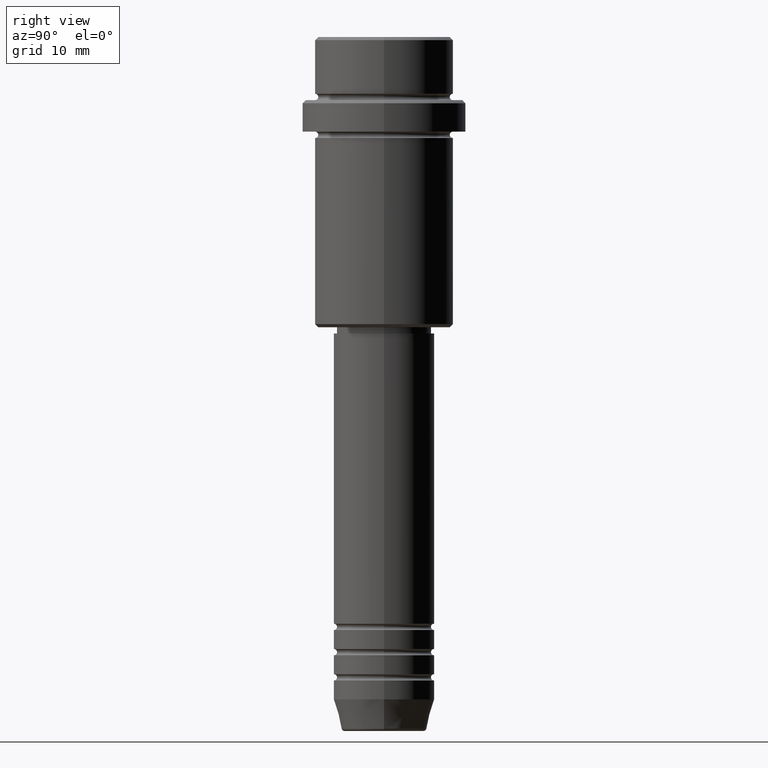
[diagram: clean part render]
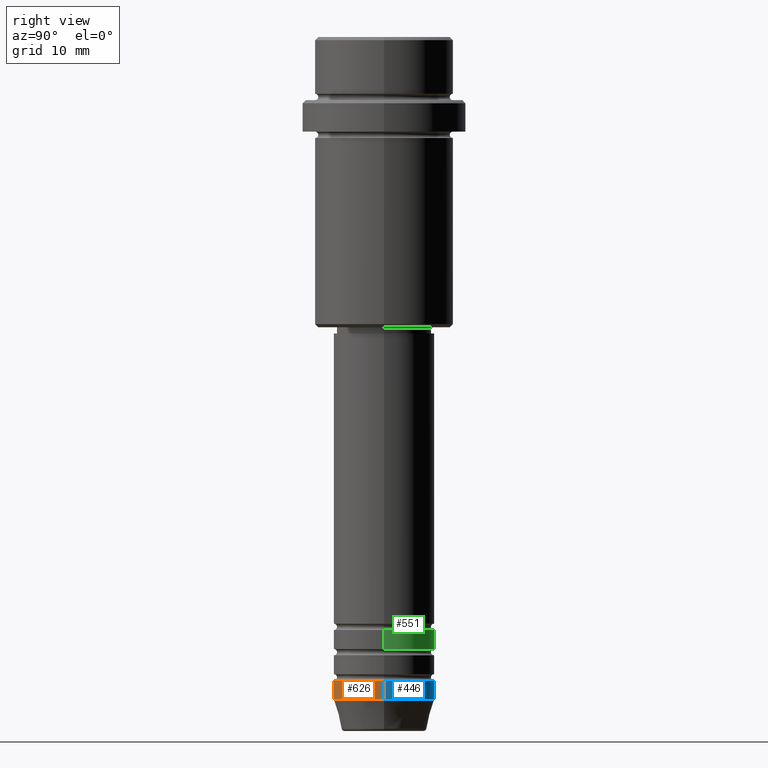
[diagram: same view with three faces highlighted in distinct colors, each labeled with its STEP entity id]
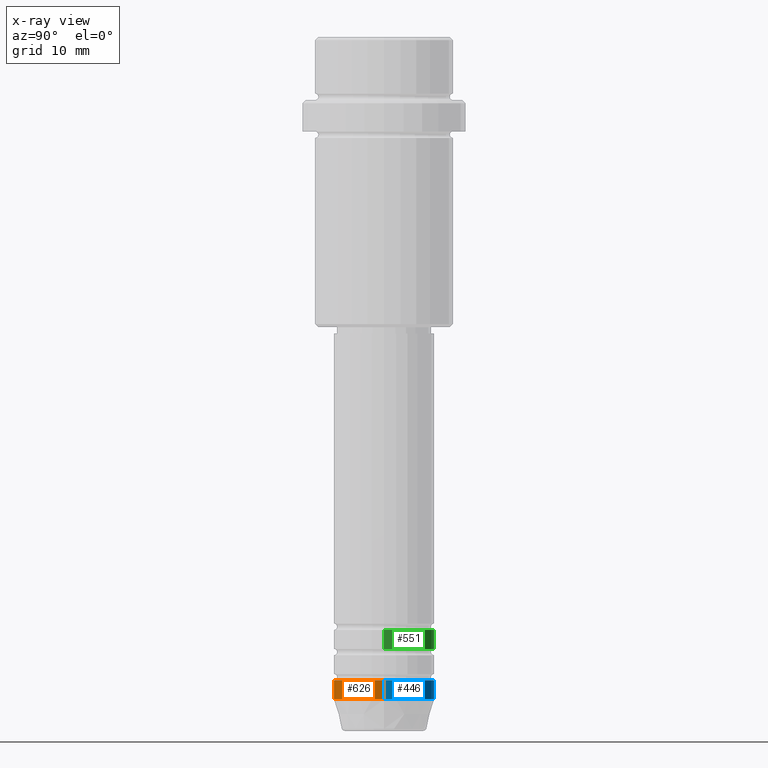
[diagram: x-ray of the same camera — body ghosted, the three highlighted faces saturated]
A machine part, right view with three faces highlighted in distinct colors.
The next image is the same camera in x-ray (body ghosted, the three faces saturated) — at least one of them is partly hidden behind the body in this view.
Their STEP definitions:

[orange] entity #626 — the highlighted cylindrical surface (partial cylindrical patch) has radius 8 mm, axis along (-0, -0, 1).
#22 = ORIENTED_EDGE ( 'NONE', *, *, #512, .F. ) ;
#25 = VERTEX_POINT ( 'NONE', #464 ) ;
#99 = VERTEX_POINT ( 'NONE', #1350 ) ;
#164 = DIRECTION ( 'NONE',  ( -0.000000000000000000, -0.000000000000000000, 1.000000000000000000 ) ) ;
#183 = DIRECTION ( 'NONE',  ( -0.000000000000000000, -0.000000000000000000, 1.000000000000000000 ) ) ;
#217 = DIRECTION ( 'NONE',  ( -0.000000000000000000, -0.000000000000000000, 1.000000000000000000 ) ) ;
#234 = FACE_OUTER_BOUND ( 'NONE', #373, .T. ) ;
#259 = DIRECTION ( 'NONE',  ( 1.000000000000000000, 0.000000000000000000, 0.000000000000000000 ) ) ;
#373 = EDGE_LOOP ( 'NONE', ( #1135, #1261, #1180, #22 ) ) ;
#464 = CARTESIAN_POINT ( 'NONE',  ( 8.000000000000000000, 0.000000000000000000, -102.0000000000000142 ) ) ;
#482 = VERTEX_POINT ( 'NONE', #786 ) ;
#504 = CARTESIAN_POINT ( 'NONE',  ( 0.000000000000000000, 0.000000000000000000, -105.0000000000000142 ) ) ;
#510 = DIRECTION ( 'NONE',  ( -0.000000000000000000, -0.000000000000000000, 1.000000000000000000 ) ) ;
#512 = EDGE_CURVE ( 'NONE', #482, #25, #1102, .T. ) ;
#548 = CYLINDRICAL_SURFACE ( 'NONE', #1240, 8.000000000000000000 ) ;
#592 = LINE ( 'NONE', #1035, #953 ) ;
#626 = ADVANCED_FACE ( 'NONE', ( #234 ), #548, .T. ) ;
#654 = VECTOR ( 'NONE', #164, 1000.000000000000000 ) ;
#670 = DIRECTION ( 'NONE',  ( 1.000000000000000000, 0.000000000000000000, 0.000000000000000000 ) ) ;
#674 = LINE ( 'NONE', #1353, #654 ) ;
#771 = AXIS2_PLACEMENT_3D ( 'NONE', #797, #1044, #259 ) ;
#786 = CARTESIAN_POINT ( 'NONE',  ( -8.000000000000000000, 9.797174393178825657E-16, -102.0000000000000142 ) ) ;
#797 = CARTESIAN_POINT ( 'NONE',  ( 0.000000000000000000, 0.000000000000000000, -102.0000000000000142 ) ) ;
#869 = VERTEX_POINT ( 'NONE', #1070 ) ;
#941 = DIRECTION ( 'NONE',  ( 1.000000000000000000, 0.000000000000000000, 0.000000000000000000 ) ) ;
#953 = VECTOR ( 'NONE', #183, 1000.000000000000000 ) ;
#999 = CIRCLE ( 'NONE', #1183, 8.000000000000000000 ) ;
#1003 = EDGE_CURVE ( 'NONE', #869, #482, #674, .T. ) ;
#1035 = CARTESIAN_POINT ( 'NONE',  ( 8.000000000000000000, 0.000000000000000000, 0.000000000000000000 ) ) ;
#1044 = DIRECTION ( 'NONE',  ( -0.000000000000000000, -0.000000000000000000, 1.000000000000000000 ) ) ;
#1070 = CARTESIAN_POINT ( 'NONE',  ( -8.000000000000000000, 9.797174393178825657E-16, -105.0000000000000142 ) ) ;
#1102 = CIRCLE ( 'NONE', #771, 8.000000000000000000 ) ;
#1110 = EDGE_CURVE ( 'NONE', #99, #25, #592, .T. ) ;
#1135 = ORIENTED_EDGE ( 'NONE', *, *, #1003, .F. ) ;
#1156 = EDGE_CURVE ( 'NONE', #869, #99, #999, .T. ) ;
#1180 = ORIENTED_EDGE ( 'NONE', *, *, #1110, .T. ) ;
#1183 = AXIS2_PLACEMENT_3D ( 'NONE', #504, #510, #941 ) ;
#1240 = AXIS2_PLACEMENT_3D ( 'NONE', #1334, #217, #670 ) ;
#1261 = ORIENTED_EDGE ( 'NONE', *, *, #1156, .T. ) ;
#1334 = CARTESIAN_POINT ( 'NONE',  ( 0.000000000000000000, 0.000000000000000000, 0.000000000000000000 ) ) ;
#1350 = CARTESIAN_POINT ( 'NONE',  ( 8.000000000000000000, 0.000000000000000000, -105.0000000000000142 ) ) ;
#1353 = CARTESIAN_POINT ( 'NONE',  ( -8.000000000000000000, 9.797174393178825657E-16, 0.000000000000000000 ) ) ;

[blue] entity #446 — the highlighted cylindrical surface (partial cylindrical patch) has radius 8 mm, axis along (-0, -0, 1).
#2 = CYLINDRICAL_SURFACE ( 'NONE', #1386, 8.000000000000000000 ) ;
#25 = VERTEX_POINT ( 'NONE', #464 ) ;
#87 = ORIENTED_EDGE ( 'NONE', *, *, #1110, .F. ) ;
#99 = VERTEX_POINT ( 'NONE', #1350 ) ;
#164 = DIRECTION ( 'NONE',  ( -0.000000000000000000, -0.000000000000000000, 1.000000000000000000 ) ) ;
#183 = DIRECTION ( 'NONE',  ( -0.000000000000000000, -0.000000000000000000, 1.000000000000000000 ) ) ;
#237 = EDGE_CURVE ( 'NONE', #25, #482, #859, .T. ) ;
#281 = CARTESIAN_POINT ( 'NONE',  ( 0.000000000000000000, 0.000000000000000000, -105.0000000000000142 ) ) ;
#365 = CIRCLE ( 'NONE', #1166, 8.000000000000000000 ) ;
#443 = CARTESIAN_POINT ( 'NONE',  ( 0.000000000000000000, 0.000000000000000000, 0.000000000000000000 ) ) ;
#446 = ADVANCED_FACE ( 'NONE', ( #759 ), #2, .T. ) ;
#464 = CARTESIAN_POINT ( 'NONE',  ( 8.000000000000000000, 0.000000000000000000, -102.0000000000000142 ) ) ;
#482 = VERTEX_POINT ( 'NONE', #786 ) ;
#516 = DIRECTION ( 'NONE',  ( 1.000000000000000000, 0.000000000000000000, 0.000000000000000000 ) ) ;
#524 = EDGE_CURVE ( 'NONE', #99, #869, #365, .T. ) ;
#586 = AXIS2_PLACEMENT_3D ( 'NONE', #732, #1086, #516 ) ;
#592 = LINE ( 'NONE', #1035, #953 ) ;
#654 = VECTOR ( 'NONE', #164, 1000.000000000000000 ) ;
#674 = LINE ( 'NONE', #1353, #654 ) ;
#719 = DIRECTION ( 'NONE',  ( 1.000000000000000000, 0.000000000000000000, 0.000000000000000000 ) ) ;
#732 = CARTESIAN_POINT ( 'NONE',  ( 0.000000000000000000, 0.000000000000000000, -102.0000000000000142 ) ) ;
#759 = FACE_OUTER_BOUND ( 'NONE', #981, .T. ) ;
#786 = CARTESIAN_POINT ( 'NONE',  ( -8.000000000000000000, 9.797174393178825657E-16, -102.0000000000000142 ) ) ;
#859 = CIRCLE ( 'NONE', #586, 8.000000000000000000 ) ;
#867 = ORIENTED_EDGE ( 'NONE', *, *, #524, .T. ) ;
#869 = VERTEX_POINT ( 'NONE', #1070 ) ;
#870 = DIRECTION ( 'NONE',  ( 1.000000000000000000, 0.000000000000000000, 0.000000000000000000 ) ) ;
#918 = DIRECTION ( 'NONE',  ( -0.000000000000000000, -0.000000000000000000, 1.000000000000000000 ) ) ;
#953 = VECTOR ( 'NONE', #183, 1000.000000000000000 ) ;
#981 = EDGE_LOOP ( 'NONE', ( #867, #1345, #1011, #87 ) ) ;
#1003 = EDGE_CURVE ( 'NONE', #869, #482, #674, .T. ) ;
#1011 = ORIENTED_EDGE ( 'NONE', *, *, #237, .F. ) ;
#1035 = CARTESIAN_POINT ( 'NONE',  ( 8.000000000000000000, 0.000000000000000000, 0.000000000000000000 ) ) ;
#1070 = CARTESIAN_POINT ( 'NONE',  ( -8.000000000000000000, 9.797174393178825657E-16, -105.0000000000000142 ) ) ;
#1086 = DIRECTION ( 'NONE',  ( -0.000000000000000000, -0.000000000000000000, 1.000000000000000000 ) ) ;
#1110 = EDGE_CURVE ( 'NONE', #99, #25, #592, .T. ) ;
#1166 = AXIS2_PLACEMENT_3D ( 'NONE', #281, #918, #719 ) ;
#1332 = DIRECTION ( 'NONE',  ( -0.000000000000000000, -0.000000000000000000, 1.000000000000000000 ) ) ;
#1345 = ORIENTED_EDGE ( 'NONE', *, *, #1003, .T. ) ;
#1350 = CARTESIAN_POINT ( 'NONE',  ( 8.000000000000000000, 0.000000000000000000, -105.0000000000000142 ) ) ;
#1353 = CARTESIAN_POINT ( 'NONE',  ( -8.000000000000000000, 9.797174393178825657E-16, 0.000000000000000000 ) ) ;
#1386 = AXIS2_PLACEMENT_3D ( 'NONE', #443, #1332, #870 ) ;

[green] entity #551 — the highlighted cylindrical surface (partial cylindrical patch) has radius 8 mm, axis along (-0, -0, 1).
#12 = ORIENTED_EDGE ( 'NONE', *, *, #865, .T. ) ;
#48 = CARTESIAN_POINT ( 'NONE',  ( 0.000000000000000000, 0.000000000000000000, -96.99999999999988631 ) ) ;
#71 = CARTESIAN_POINT ( 'NONE',  ( 8.000000000000000000, 0.000000000000000000, 0.000000000000000000 ) ) ;
#83 = AXIS2_PLACEMENT_3D ( 'NONE', #643, #1192, #857 ) ;
#205 = DIRECTION ( 'NONE',  ( 1.000000000000000000, 0.000000000000000000, 0.000000000000000000 ) ) ;
#255 = VERTEX_POINT ( 'NONE', #1400 ) ;
#300 = EDGE_CURVE ( 'NONE', #521, #837, #884, .T. ) ;
#314 = VECTOR ( 'NONE', #946, 1000.000000000000000 ) ;
#417 = CARTESIAN_POINT ( 'NONE',  ( -8.000000000000000000, 9.797174393178825657E-16, 0.000000000000000000 ) ) ;
#420 = CARTESIAN_POINT ( 'NONE',  ( 0.000000000000000000, 0.000000000000000000, 0.000000000000000000 ) ) ;
#441 = FACE_OUTER_BOUND ( 'NONE', #1317, .T. ) ;
#448 = ORIENTED_EDGE ( 'NONE', *, *, #1381, .T. ) ;
#497 = AXIS2_PLACEMENT_3D ( 'NONE', #48, #1369, #509 ) ;
#509 = DIRECTION ( 'NONE',  ( 1.000000000000000000, 0.000000000000000000, 0.000000000000000000 ) ) ;
#521 = VERTEX_POINT ( 'NONE', #1020 ) ;
#540 = DIRECTION ( 'NONE',  ( -0.000000000000000000, -0.000000000000000000, 1.000000000000000000 ) ) ;
#551 = ADVANCED_FACE ( 'NONE', ( #441 ), #966, .T. ) ;
#562 = CARTESIAN_POINT ( 'NONE',  ( -8.000000000000000000, 9.797174393178825657E-16, -93.99999999999988631 ) ) ;
#642 = LINE ( 'NONE', #417, #1053 ) ;
#643 = CARTESIAN_POINT ( 'NONE',  ( 0.000000000000000000, 0.000000000000000000, -93.99999999999988631 ) ) ;
#687 = ORIENTED_EDGE ( 'NONE', *, *, #1177, .F. ) ;
#696 = ORIENTED_EDGE ( 'NONE', *, *, #300, .F. ) ;
#837 = VERTEX_POINT ( 'NONE', #562 ) ;
#857 = DIRECTION ( 'NONE',  ( 1.000000000000000000, 0.000000000000000000, 0.000000000000000000 ) ) ;
#865 = EDGE_CURVE ( 'NONE', #255, #943, #1405, .T. ) ;
#884 = CIRCLE ( 'NONE', #83, 8.000000000000000000 ) ;
#943 = VERTEX_POINT ( 'NONE', #1067 ) ;
#946 = DIRECTION ( 'NONE',  ( -0.000000000000000000, -0.000000000000000000, 1.000000000000000000 ) ) ;
#966 = CYLINDRICAL_SURFACE ( 'NONE', #1281, 8.000000000000000000 ) ;
#977 = DIRECTION ( 'NONE',  ( -0.000000000000000000, -0.000000000000000000, 1.000000000000000000 ) ) ;
#1020 = CARTESIAN_POINT ( 'NONE',  ( 8.000000000000000000, 0.000000000000000000, -93.99999999999988631 ) ) ;
#1053 = VECTOR ( 'NONE', #977, 1000.000000000000000 ) ;
#1067 = CARTESIAN_POINT ( 'NONE',  ( -8.000000000000000000, 9.797174393178825657E-16, -96.99999999999988631 ) ) ;
#1177 = EDGE_CURVE ( 'NONE', #255, #521, #1387, .T. ) ;
#1192 = DIRECTION ( 'NONE',  ( -0.000000000000000000, -0.000000000000000000, 1.000000000000000000 ) ) ;
#1281 = AXIS2_PLACEMENT_3D ( 'NONE', #420, #540, #205 ) ;
#1317 = EDGE_LOOP ( 'NONE', ( #12, #448, #696, #687 ) ) ;
#1369 = DIRECTION ( 'NONE',  ( -0.000000000000000000, -0.000000000000000000, 1.000000000000000000 ) ) ;
#1381 = EDGE_CURVE ( 'NONE', #943, #837, #642, .T. ) ;
#1387 = LINE ( 'NONE', #71, #314 ) ;
#1400 = CARTESIAN_POINT ( 'NONE',  ( 8.000000000000000000, 0.000000000000000000, -96.99999999999988631 ) ) ;
#1405 = CIRCLE ( 'NONE', #497, 8.000000000000000000 ) ;